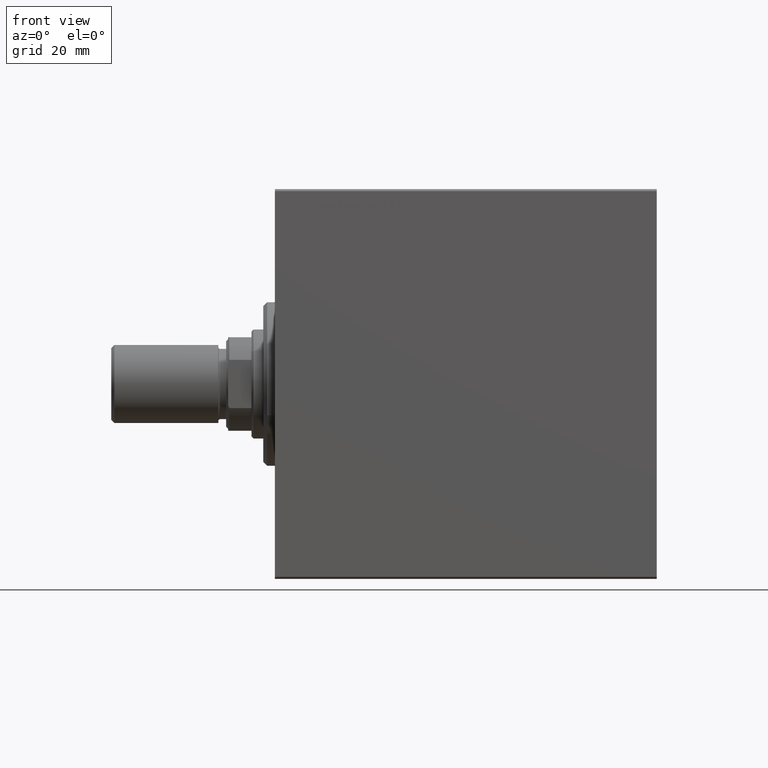
[diagram: clean part render]
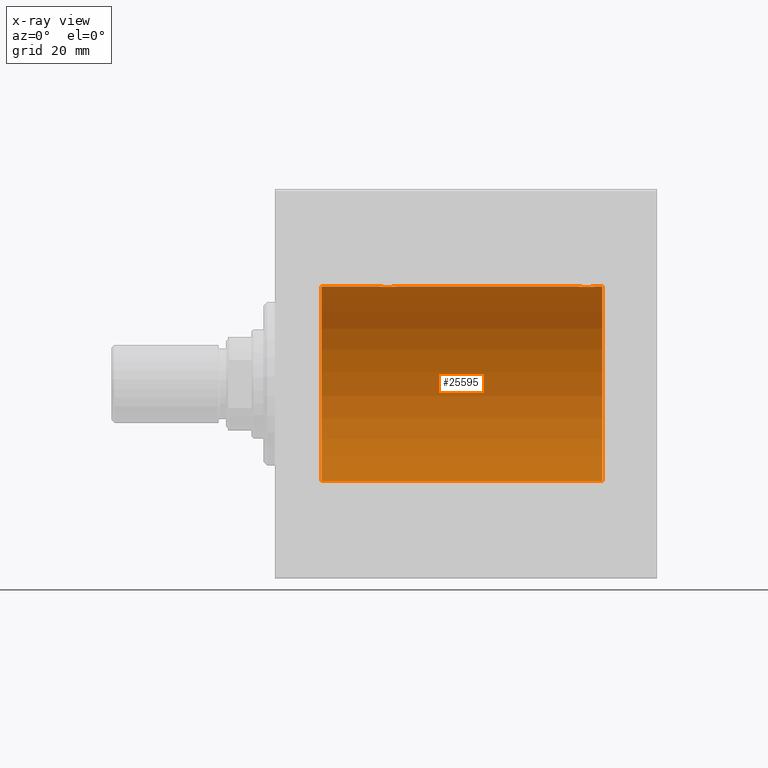
[diagram: x-ray — body ghosted, one internal face saturated and labeled with its STEP entity id]
A machine part, front view, then the same camera in x-ray: the body is ghosted and one INTERNAL B-rep face — a face not visible from any outside direction — is saturated and labeled: STEP entity #25595.
In plain terms, the highlighted cylindrical surface (partial cylindrical patch) has radius 25 mm, axis along (-1, -0, -0).
Its self-contained STEP definition (entity closure, byte-faithful):
#73 = ORIENTED_EDGE ( 'NONE', *, *, #9394, .T. ) ;
#916 = DIRECTION ( 'NONE',  ( -1.000000000000000000, -0.000000000000000000, -0.000000000000000000 ) ) ;
#1566 = CARTESIAN_POINT ( 'NONE',  ( 27.74628466518808168, 2.169035936979783585, 24.90589343070811168 ) ) ;
#1784 = CARTESIAN_POINT ( 'NONE',  ( 29.16407969376738052, 2.499940606140134136, 24.87469189697262095 ) ) ;
#1864 = EDGE_CURVE ( 'NONE', #2271, #17264, #35533, .T. ) ;
#2093 = CARTESIAN_POINT ( 'NONE',  ( 84.00000000000000000, 0.000000000000000000, 25.00000000000000000 ) ) ;
#2232 = CARTESIAN_POINT ( 'NONE',  ( 28.19536086700186317, 2.372637051600623881, 24.88723676875458324 ) ) ;
#2271 = VERTEX_POINT ( 'NONE', #6754 ) ;
#2764 = CARTESIAN_POINT ( 'NONE',  ( 82.48376868269158990, 0.3278008924763897713, 24.99836206720143394 ) ) ;
#2815 = EDGE_CURVE ( 'NONE', #28732, #37348, #40691, .T. ) ;
#2915 = VECTOR ( 'NONE', #35898, 1000.000000000000000 ) ;
#3082 = DIRECTION ( 'NONE',  ( -1.000000000000000000, -0.000000000000000000, -0.000000000000000000 ) ) ;
#3202 = CARTESIAN_POINT ( 'NONE',  ( 77.51635884985689984, 0.3289998300458005231, 24.99834914448731737 ) ) ;
#3416 = CARTESIAN_POINT ( 'NONE',  ( 80.16407969376739118, 2.499940606140130583, 24.87469189697261740 ) ) ;
#3619 = ORIENTED_EDGE ( 'NONE', *, *, #21624, .T. ) ;
#3651 = ORIENTED_EDGE ( 'NONE', *, *, #1864, .T. ) ;
#3776 = CARTESIAN_POINT ( 'NONE',  ( 31.50000000000000000, -3.363311788663921560E-15, 25.00000000000000000 ) ) ;
#3859 = CARTESIAN_POINT ( 'NONE',  ( 78.47549655812819935, 1.988066470813636410, 24.92099187803979987 ) ) ;
#4080 = CARTESIAN_POINT ( 'NONE',  ( 77.50000000000001421, -1.940163953345817485E-23, 25.00000000000000000 ) ) ;
#4167 = VECTOR ( 'NONE', #3082, 1000.000000000000000 ) ;
#4297 = CARTESIAN_POINT ( 'NONE',  ( 84.00000000000000000, 3.061616997868382254E-15, -25.00000000000000000 ) ) ;
#4884 = AXIS2_PLACEMENT_3D ( 'NONE', #37371, #16624, #9419 ) ;
#4928 = CARTESIAN_POINT ( 'NONE',  ( 84.00000000000000000, 0.000000000000000000, 25.00000000000000000 ) ) ;
#4940 = CARTESIAN_POINT ( 'NONE',  ( 27.89254763180204222, 2.247309494740949543, 24.89886665287248491 ) ) ;
#5168 = CARTESIAN_POINT ( 'NONE',  ( 31.49999999999999289, 0.1652919547268403844, 25.00000000000000000 ) ) ;
#5387 = CARTESIAN_POINT ( 'NONE',  ( 30.65214997850824830, 1.883339088673197992, 24.92922739080161421 ) ) ;
#5611 = CARTESIAN_POINT ( 'NONE',  ( 29.64916515999327018, 2.419847904056432686, 24.88263203448061134 ) ) ;
#5622 = CARTESIAN_POINT ( 'NONE',  ( 84.00000000000000000, 0.000000000000000000, 0.000000000000000000 ) ) ;
#5832 = CARTESIAN_POINT ( 'NONE',  ( 28.83773523386617654, 2.500059064463603153, 24.87467999146394959 ) ) ;
#5847 = DIRECTION ( 'NONE',  ( 0.000000000000000000, 0.000000000000000000, 1.000000000000000000 ) ) ;
#6087 = VERTEX_POINT ( 'NONE', #6627 ) ;
#6590 = CARTESIAN_POINT ( 'NONE',  ( 78.89254763180203156, 2.247309494740944213, 24.89886665287247780 ) ) ;
#6627 = CARTESIAN_POINT ( 'NONE',  ( 11.99999999999999645, 0.000000000000000000, 25.00000000000000000 ) ) ;
#6754 = CARTESIAN_POINT ( 'NONE',  ( 82.50000000000001421, 2.791216707898424283E-15, 25.00000000000000000 ) ) ;
#7026 = AXIS2_PLACEMENT_3D ( 'NONE', #5622, #29492, #5847 ) ;
#7470 = ORIENTED_EDGE ( 'NONE', *, *, #40869, .T. ) ;
#8049 = B_SPLINE_CURVE_WITH_KNOTS ( 'NONE', 3,
 ( #35806, #5168, #19344, #8762, #15293, #29024, #8980, #22713, #18904, #5387, #33087, #19119, #15739, #22490, #5611, #32644, #1784, #5832, #32417, #29480, #2232, #4940, #1566, #9202, #33311, #22933, #15515, #29244, #36709, #19565, #36263, #16183, #29920, #43676 ),
 .UNSPECIFIED., .F., .F.,
 ( 4, 2, 2, 2, 2, 2, 2, 2, 2, 2, 2, 2, 2, 2, 2, 2, 4 ),
 ( 5.557925451109527434E-18, 0.0004888140276038975334, 0.0009776280552077896459, 0.001466442082811681216, 0.001955256110415572787, 0.002444070138019463923, 0.002932884165623355927, 0.003421698193227247064, 0.003910512220831138634, 0.004399326248435030638, 0.004888140276038921775, 0.005376954303642814646, 0.005865768331246706650, 0.006354582358850598654, 0.006843396386454489791, 0.007332210414058382662, 0.007821024441662273799 ),
 .UNSPECIFIED. ) ;
#8762 = CARTESIAN_POINT ( 'NONE',  ( 31.42019035479160038, 0.6474866336855810145, 24.99212517028518832 ) ) ;
#8980 = CARTESIAN_POINT ( 'NONE',  ( 31.16970456409868362, 1.252624798282893304, 24.96896960740657789 ) ) ;
#9202 = CARTESIAN_POINT ( 'NONE',  ( 27.47549655812821001, 1.988066470813638631, 24.92099187803980342 ) ) ;
#9394 = EDGE_CURVE ( 'NONE', #29178, #6087, #18888, .T. ) ;
#9419 = DIRECTION ( 'NONE',  ( 0.000000000000000000, 0.000000000000000000, 1.000000000000000000 ) ) ;
#10378 = CARTESIAN_POINT ( 'NONE',  ( 78.74628466518808523, 2.169035936979781365, 24.90589343070811168 ) ) ;
#10598 = CARTESIAN_POINT ( 'NONE',  ( 79.35125657267359145, 2.419890192637109028, 24.88262770889313558 ) ) ;
#11046 = CARTESIAN_POINT ( 'NONE',  ( 81.10765995523904337, 2.247131495942863211, 24.89888190765473652 ) ) ;
#13113 = CARTESIAN_POINT ( 'NONE',  ( 82.37206391457593213, 0.8063280894284519107, 24.98745245851526420 ) ) ;
#15293 = CARTESIAN_POINT ( 'NONE',  ( 31.37206391457592858, 0.8063280894284537981, 24.98745245851526064 ) ) ;
#15515 = CARTESIAN_POINT ( 'NONE',  ( 27.01241165387908083, 1.525124164792365677, 24.95380474534677262 ) ) ;
#15739 = CARTESIAN_POINT ( 'NONE',  ( 30.10765995523902916, 2.247131495942866319, 24.89888190765473297 ) ) ;
#15951 = DIRECTION ( 'NONE',  ( -1.000000000000000000, -0.000000000000000000, -0.000000000000000000 ) ) ;
#16183 = CARTESIAN_POINT ( 'NONE',  ( 26.51635884985689984, 0.3289998300458025771, 24.99834914448731737 ) ) ;
#16194 = CYLINDRICAL_SURFACE ( 'NONE', #7026, 25.00000000000000000 ) ;
#16624 = DIRECTION ( 'NONE',  ( -1.000000000000000000, 0.000000000000000000, 0.000000000000000000 ) ) ;
#16932 = CARTESIAN_POINT ( 'NONE',  ( 77.50000000000000000, 0.1632133729155517687, 24.99999999999999645 ) ) ;
#17264 = VERTEX_POINT ( 'NONE', #39396 ) ;
#18445 = VECTOR ( 'NONE', #15951, 1000.000000000000000 ) ;
#18888 = LINE ( 'NONE', #4928, #18445 ) ;
#18904 = CARTESIAN_POINT ( 'NONE',  ( 30.88269712975891323, 1.652881481536637054, 24.94556728625771669 ) ) ;
#19119 = CARTESIAN_POINT ( 'NONE',  ( 30.25304113529935890, 2.169541443998010966, 24.90585268157805032 ) ) ;
#19344 = CARTESIAN_POINT ( 'NONE',  ( 31.48376868269157214, 0.3278008924763924359, 24.99836206720143394 ) ) ;
#19565 = CARTESIAN_POINT ( 'NONE',  ( 26.62762890801418791, 0.8054273576766337595, 24.98748174524256171 ) ) ;
#19877 = CARTESIAN_POINT ( 'NONE',  ( 82.50000000000001421, 2.791216707898424283E-15, 25.00000000000000000 ) ) ;
#20100 = CARTESIAN_POINT ( 'NONE',  ( 82.42019035479160038, 0.6474866336855787941, 24.99212517028518832 ) ) ;
#20326 = DIRECTION ( 'NONE',  ( 0.000000000000000000, 0.000000000000000000, 1.000000000000000000 ) ) ;
#20974 = CARTESIAN_POINT ( 'NONE',  ( 78.11576698070011560, 1.651337078997080043, 24.94567646296264485 ) ) ;
#21192 = CARTESIAN_POINT ( 'NONE',  ( 77.75307623591049833, 1.108237982093032370, 24.97588368351298627 ) ) ;
#21234 = AXIS2_PLACEMENT_3D ( 'NONE', #36583, #30017, #20326 ) ;
#21624 = EDGE_CURVE ( 'NONE', #6087, #29204, #27876, .T. ) ;
#21814 = ORIENTED_EDGE ( 'NONE', *, *, #2815, .F. ) ;
#22051 = ORIENTED_EDGE ( 'NONE', *, *, #33091, .T. ) ;
#22490 = CARTESIAN_POINT ( 'NONE',  ( 29.80683588887133340, 2.371819214216748239, 24.88731391344729360 ) ) ;
#22514 = CARTESIAN_POINT ( 'NONE',  ( 84.00000000000000000, 3.061616997868382254E-15, -25.00000000000000000 ) ) ;
#22713 = CARTESIAN_POINT ( 'NONE',  ( 30.98824666821940355, 1.524323445682836953, 24.95385641887459016 ) ) ;
#22899 = EDGE_CURVE ( 'NONE', #17264, #27799, #33939, .T. ) ;
#22933 = CARTESIAN_POINT ( 'NONE',  ( 27.11576698070013336, 1.651337078997080710, 24.94567646296264840 ) ) ;
#24124 = CARTESIAN_POINT ( 'NONE',  ( 80.32637449227345883, 2.484060984458436039, 24.87630362147113772 ) ) ;
#25595 = ADVANCED_FACE ( 'NONE', ( #36274 ), #16194, .F. ) ;
#26850 = CARTESIAN_POINT ( 'NONE',  ( 82.24651678820872291, 1.109060198064593328, 24.97584694923138215 ) ) ;
#27288 = CARTESIAN_POINT ( 'NONE',  ( 79.83773523386616944, 2.500059064463600489, 24.87467999146394604 ) ) ;
#27702 = LINE ( 'NONE', #4297, #32492 ) ;
#27799 = VERTEX_POINT ( 'NONE', #3776 ) ;
#27876 = CIRCLE ( 'NONE', #4884, 25.00000000000000000 ) ;
#28173 = CARTESIAN_POINT ( 'NONE',  ( 81.88269712975893810, 1.652881481536634167, 24.94556728625772024 ) ) ;
#28732 = VERTEX_POINT ( 'NONE', #28768 ) ;
#28768 = CARTESIAN_POINT ( 'NONE',  ( 84.00000000000000000, 0.000000000000000000, 25.00000000000000000 ) ) ;
#29024 = CARTESIAN_POINT ( 'NONE',  ( 31.24651678820870515, 1.109060198064595992, 24.97584694923138215 ) ) ;
#29178 = VERTEX_POINT ( 'NONE', #38425 ) ;
#29204 = VERTEX_POINT ( 'NONE', #37762 ) ;
#29244 = CARTESIAN_POINT ( 'NONE',  ( 26.83138181747519369, 1.254434665533501247, 24.96887599906796140 ) ) ;
#29336 = LINE ( 'NONE', #2093, #2915 ) ;
#29480 = CARTESIAN_POINT ( 'NONE',  ( 28.35125657267360566, 2.419890192637116133, 24.88262770889313202 ) ) ;
#29492 = DIRECTION ( 'NONE',  ( -1.000000000000000000, -0.000000000000000000, -0.000000000000000000 ) ) ;
#29920 = CARTESIAN_POINT ( 'NONE',  ( 26.50000000000000355, 0.1632133729155534341, 25.00000000000000355 ) ) ;
#30017 = DIRECTION ( 'NONE',  ( -1.000000000000000000, 0.000000000000000000, 0.000000000000000000 ) ) ;
#30674 = CARTESIAN_POINT ( 'NONE',  ( 79.19536086700188093, 2.372637051600620328, 24.88723676875458324 ) ) ;
#30900 = CARTESIAN_POINT ( 'NONE',  ( 77.62762890801420212, 0.8054273576766330933, 24.98748174524255106 ) ) ;
#31120 = CARTESIAN_POINT ( 'NONE',  ( 81.25304113529938377, 2.169541443998010521, 24.90585268157805032 ) ) ;
#31572 = CARTESIAN_POINT ( 'NONE',  ( 81.52633503512342372, 1.986787236855545924, 24.92109717386377810 ) ) ;
#32417 = CARTESIAN_POINT ( 'NONE',  ( 28.67198227724997395, 2.483775543901335592, 24.87633190989611265 ) ) ;
#32492 = VECTOR ( 'NONE', #916, 1000.000000000000000 ) ;
#32644 = CARTESIAN_POINT ( 'NONE',  ( 29.32637449227344817, 2.484060984458440924, 24.87630362147114127 ) ) ;
#33087 = CARTESIAN_POINT ( 'NONE',  ( 30.52633503512342017, 1.986787236855546368, 24.92109717386378520 ) ) ;
#33091 = EDGE_CURVE ( 'NONE', #28732, #2271, #29336, .T. ) ;
#33311 = CARTESIAN_POINT ( 'NONE',  ( 27.34924793645206975, 1.884745564839652721, 24.92912799315484662 ) ) ;
#33619 = CARTESIAN_POINT ( 'NONE',  ( 82.50000000000001421, 0.1652919547268416056, 25.00000000000000355 ) ) ;
#33939 = LINE ( 'NONE', #44303, #4167 ) ;
#34059 = CARTESIAN_POINT ( 'NONE',  ( 78.34924793645207330, 1.884745564839651832, 24.92912799315484307 ) ) ;
#34500 = CARTESIAN_POINT ( 'NONE',  ( 78.01241165387911281, 1.525124164792365455, 24.95380474534677262 ) ) ;
#34949 = CARTESIAN_POINT ( 'NONE',  ( 80.80683588887137603, 2.371819214216743799, 24.88731391344729360 ) ) ;
#35045 = ORIENTED_EDGE ( 'NONE', *, *, #22899, .T. ) ;
#35533 = B_SPLINE_CURVE_WITH_KNOTS ( 'NONE', 3,
 ( #19877, #33619, #2764, #20100, #13113, #26850, #40617, #41276, #28173, #41498, #31572, #31120, #11046, #34949, #37458, #24124, #3416, #27288, #37675, #10598, #30674, #6590, #10378, #3859, #34059, #20974, #34500, #41941, #21192, #30900, #41058, #3202, #16932, #4080 ),
 .UNSPECIFIED., .F., .F.,
 ( 4, 2, 2, 2, 2, 2, 2, 2, 2, 2, 2, 2, 2, 2, 2, 2, 4 ),
 ( 2.712282590340838778E-18, 0.0004888140276038966661, 0.0009776280552077907301, 0.001466442082811684035, 0.001955256110415577123, 0.002444070138019470862, 0.002932884165623363733, 0.003421698193227256605, 0.003910512220831149910, 0.004399326248435042781, 0.004888140276038936520, 0.005376954303642829391, 0.005865768331246722263, 0.006354582358850615134, 0.006843396386454508006, 0.007332210414058401744, 0.007821024441662294616 ),
 .UNSPECIFIED. ) ;
#35806 = CARTESIAN_POINT ( 'NONE',  ( 31.50000000000000000, -3.363311788663921560E-15, 25.00000000000000000 ) ) ;
#35898 = DIRECTION ( 'NONE',  ( -1.000000000000000000, -0.000000000000000000, -0.000000000000000000 ) ) ;
#36263 = CARTESIAN_POINT ( 'NONE',  ( 26.58033563915884656, 0.6495680347195832427, 24.99207398768919575 ) ) ;
#36274 = FACE_OUTER_BOUND ( 'NONE', #39275, .T. ) ;
#36583 = CARTESIAN_POINT ( 'NONE',  ( 84.00000000000000000, 0.000000000000000000, 0.000000000000000000 ) ) ;
#36709 = CARTESIAN_POINT ( 'NONE',  ( 26.75307623591046635, 1.108237982093033258, 24.97588368351298627 ) ) ;
#37121 = ORIENTED_EDGE ( 'NONE', *, *, #37286, .F. ) ;
#37286 = EDGE_CURVE ( 'NONE', #37348, #29204, #27702, .T. ) ;
#37348 = VERTEX_POINT ( 'NONE', #22514 ) ;
#37371 = CARTESIAN_POINT ( 'NONE',  ( 11.99999999999999645, 0.000000000000000000, 0.000000000000000000 ) ) ;
#37458 = CARTESIAN_POINT ( 'NONE',  ( 80.64916515999327373, 2.419847904056426025, 24.88263203448060779 ) ) ;
#37675 = CARTESIAN_POINT ( 'NONE',  ( 79.67198227724999526, 2.483775543901331151, 24.87633190989611265 ) ) ;
#37762 = CARTESIAN_POINT ( 'NONE',  ( 11.99999999999999645, 3.061616997868382254E-15, -25.00000000000000000 ) ) ;
#38425 = CARTESIAN_POINT ( 'NONE',  ( 26.50000000000000355, -1.940558383798427991E-23, 25.00000000000000000 ) ) ;
#39275 = EDGE_LOOP ( 'NONE', ( #37121, #21814, #22051, #3651, #35045, #7470, #73, #3619 ) ) ;
#39396 = CARTESIAN_POINT ( 'NONE',  ( 77.50000000000001421, -1.940163953345817485E-23, 25.00000000000000000 ) ) ;
#40617 = CARTESIAN_POINT ( 'NONE',  ( 82.16970456409872270, 1.252624798282892860, 24.96896960740658500 ) ) ;
#40691 = CIRCLE ( 'NONE', #21234, 25.00000000000000000 ) ;
#40869 = EDGE_CURVE ( 'NONE', #27799, #29178, #8049, .T. ) ;
#41058 = CARTESIAN_POINT ( 'NONE',  ( 77.58033563915887498, 0.6495680347195814663, 24.99207398768919219 ) ) ;
#41276 = CARTESIAN_POINT ( 'NONE',  ( 81.98824666821940355, 1.524323445682836509, 24.95385641887458661 ) ) ;
#41498 = CARTESIAN_POINT ( 'NONE',  ( 81.65214997850823408, 1.883339088673195327, 24.92922739080160355 ) ) ;
#41941 = CARTESIAN_POINT ( 'NONE',  ( 77.83138181747520434, 1.254434665533501914, 24.96887599906796495 ) ) ;
#43676 = CARTESIAN_POINT ( 'NONE',  ( 26.50000000000000355, -1.940558383798427991E-23, 25.00000000000000000 ) ) ;
#44303 = CARTESIAN_POINT ( 'NONE',  ( 84.00000000000000000, 0.000000000000000000, 25.00000000000000000 ) ) ;